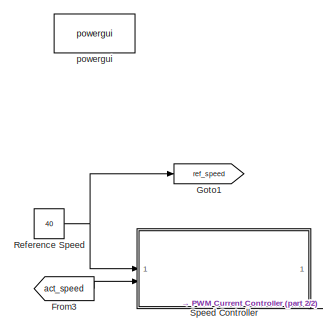
[diagram: root canvas - part 1/2, top left region]
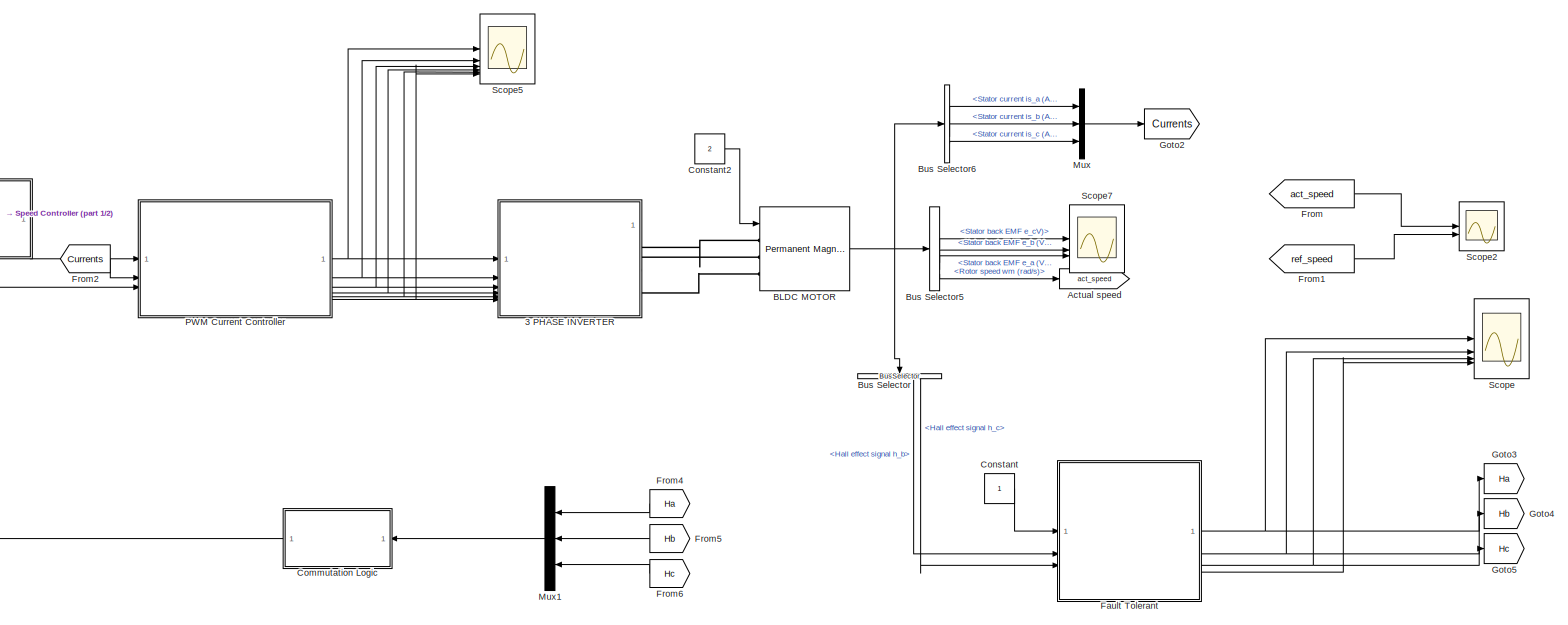
[diagram: root canvas - part 2/2, most of the canvas]
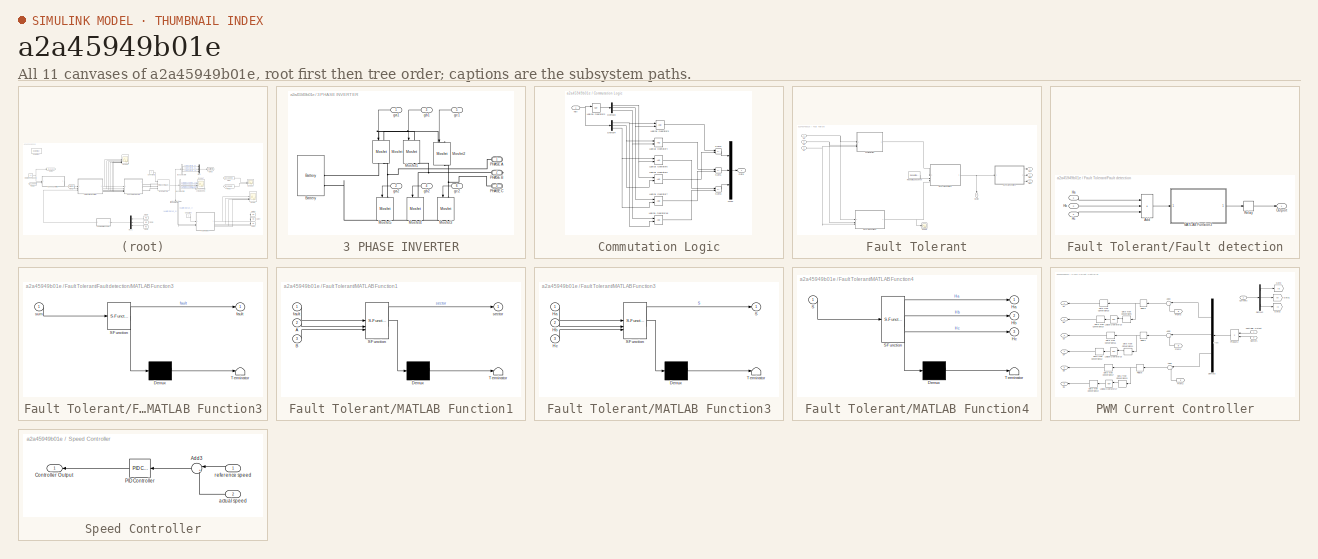
[diagram: thumbnail index - all 11 canvases of the model, root first then tree order]
MODEL slx_a2a45949b01e
KIND model
CONFIG AbsTol = auto
CONFIG EnableMultiTasking = off
CONFIG FixedStep = auto
CONFIG MaxStep = auto
CONFIG MinStep = auto
CONFIG RelTol = auto
CONFIG SampleTimeConstraint = Unconstrained
CONFIG SolverName = VariableStepAuto
CONFIG StartTime = 0.0
CONFIG StopTime = 2
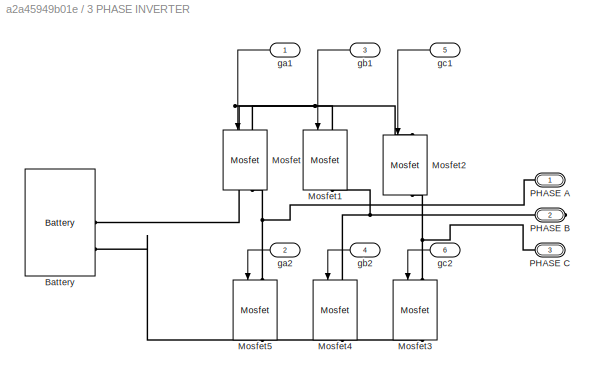
BLOCK [SubSystem] 3 PHASE INVERTER
BLOCK [Reference] 3 PHASE INVERTER/Battery  REF=spsBatteryLib/Battery
  SourceBlock = spsBatteryLib/Battery
  SourceType = Battery
BLOCK [Reference] 3 PHASE INVERTER/Mosfet  REF=spsMosfetLib/Mosfet
  NameLocation = left
  SourceBlock = spsMosfetLib/Mosfet
  SourceType = Mosfet
BLOCK [Reference] 3 PHASE INVERTER/Mosfet1  REF=spsMosfetLib/Mosfet
  NameLocation = left
  SourceBlock = spsMosfetLib/Mosfet
  SourceType = Mosfet
BLOCK [Reference] 3 PHASE INVERTER/Mosfet2  REF=spsMosfetLib/Mosfet
  NameLocation = left
  SourceBlock = spsMosfetLib/Mosfet
  SourceType = Mosfet
BLOCK [Reference] 3 PHASE INVERTER/Mosfet3  REF=spsMosfetLib/Mosfet
  NameLocation = left
  SourceBlock = spsMosfetLib/Mosfet
  SourceType = Mosfet
BLOCK [Reference] 3 PHASE INVERTER/Mosfet4  REF=spsMosfetLib/Mosfet
  NameLocation = left
  SourceBlock = spsMosfetLib/Mosfet
  SourceType = Mosfet
BLOCK [Reference] 3 PHASE INVERTER/Mosfet5  REF=spsMosfetLib/Mosfet
  NameLocation = left
  SourceBlock = spsMosfetLib/Mosfet
  SourceType = Mosfet
BLOCK [PMIOPort] 3 PHASE INVERTER/PHASE A
  Side = Right
BLOCK [PMIOPort] 3 PHASE INVERTER/PHASE B
  Port = 2
  Side = Right
BLOCK [PMIOPort] 3 PHASE INVERTER/PHASE C
  Port = 3
  Side = Right
BLOCK [Inport] 3 PHASE INVERTER/ga1
  NameLocation = top
BLOCK [Inport] 3 PHASE INVERTER/ga2
  NameLocation = top
  Port = 2
BLOCK [Inport] 3 PHASE INVERTER/gb1
  NameLocation = top
  Port = 3
BLOCK [Inport] 3 PHASE INVERTER/gb2
  NameLocation = top
  Port = 4
BLOCK [Inport] 3 PHASE INVERTER/gc1
  NameLocation = top
  Port = 5
BLOCK [Inport] 3 PHASE INVERTER/gc2
  NameLocation = top
  Port = 6
BLOCK [Goto] Actual speed
  GotoTag = act_speed
BLOCK [Reference] BLDC MOTOR  REF=spsPermanentMagnetSynchronousMachineLib/Permanent Magnet
Synchronous Machine
  SourceBlock = spsPermanentMagnetSynchronousMachineLib/Permanent Magnet\nSynchronous Machine
  SourceType = Permanent Magnet Synchronous Machine
BLOCK [BusSelector] Bus Selector
  NameLocation = left
  OutputSignals = Hall effect signal h_a,Hall effect signal h_b,Hall effect signal h_c
BLOCK [BusSelector] Bus Selector5
  OutputSignals = Stator back EMF e_cV),Stator back EMF e_b (V),Stator back EMF e_a (V),Rotor speed wm (rad/s)
BLOCK [BusSelector] Bus Selector6
  OutputSignals = Stator current is_a (A),Stator current is_b (A),Stator current is_c (A)
BLOCK [SubSystem] Commutation Logic
BLOCK [Demux] Commutation Logic/Demux3
  Outputs = 3
BLOCK [Demux] Commutation Logic/Demux4
  Outputs = 3
BLOCK [Outport] Commutation Logic/Gate
  VectorParamsAs1DForOutWhenUnconnected = off
BLOCK [Logic] Commutation Logic/Logical Operator18
  AllPortsSameDT = off
  OutDataTypeStr = boolean
BLOCK [Logic] Commutation Logic/Logical Operator2
  AllPortsSameDT = off
  Operator = NOT
  OutDataTypeStr = boolean
BLOCK [Logic] Commutation Logic/Logical Operator3
  AllPortsSameDT = off
  OutDataTypeStr = boolean
BLOCK [Logic] Commutation Logic/Logical Operator4
  AllPortsSameDT = off
  OutDataTypeStr = boolean
BLOCK [Logic] Commutation Logic/Logical Operator5
  AllPortsSameDT = off
  OutDataTypeStr = boolean
BLOCK [Logic] Commutation Logic/Logical Operator6
  AllPortsSameDT = off
  OutDataTypeStr = boolean
BLOCK [Logic] Commutation Logic/Logical Operator7
  AllPortsSameDT = off
  OutDataTypeStr = boolean
BLOCK [Mux] Commutation Logic/Mux2
  DisplayOption = bar
  Inputs = 3
BLOCK [Sum] Commutation Logic/Sum1
  IconShape = rectangular
  Inputs = +-
  OutDataTypeStr = double
BLOCK [Sum] Commutation Logic/Sum2
  IconShape = rectangular
  Inputs = +-
  OutDataTypeStr = double
BLOCK [Sum] Commutation Logic/Sum3
  IconShape = rectangular
  Inputs = +-
  OutDataTypeStr = double
BLOCK [Inport] Commutation Logic/hall 
BLOCK [Constant] Constant
BLOCK [Constant] Constant2
  Value = 2
BLOCK [SubSystem] Fault Tolerant
BLOCK [SubSystem] Fault Tolerant/Fault detection
BLOCK [Sum] Fault Tolerant/Fault detection/Add
  IconShape = rectangular
  Inputs = +++
BLOCK [Inport] Fault Tolerant/Fault detection/Ha
BLOCK [Inport] Fault Tolerant/Fault detection/Hb
  Port = 2
BLOCK [Inport] Fault Tolerant/Fault detection/Hc
  Port = 3
BLOCK [SubSystem] Fault Tolerant/Fault detection/MATLAB Function3
  ErrorFcn = Stateflow.Translate.translate
  PermitHierarchicalResolution = ExplicitOnly
  SFBlockType = MATLAB Function
  TreatAsAtomicUnit = on
BLOCK [Demux] Fault Tolerant/Fault detection/MATLAB Function3/ Demux 
  Outputs = 1
BLOCK [S-Function] Fault Tolerant/Fault detection/MATLAB Function3/ SFunction 
  EnableBusSupport = on
  FunctionName = sf_sfun
  PortCounts = [1 2]
  SFcnIsStateOwnerBlock = off
  SFunctionDeploymentMode = off
  Tag = Stateflow S-Function 3
BLOCK [Terminator] Fault Tolerant/Fault detection/MATLAB Function3/ Terminator 
BLOCK [Outport] Fault Tolerant/Fault detection/MATLAB Function3/fault
BLOCK [Inport] Fault Tolerant/Fault detection/MATLAB Function3/sum
BLOCK [Outport] Fault Tolerant/Fault detection/Outport
BLOCK [Relay] Fault Tolerant/Fault detection/Relay
  OffSwitchValue = -1
  OnSwitchValue = 1
BLOCK [Inport] Fault Tolerant/Ha
BLOCK [Outport] Fault Tolerant/Ha2
BLOCK [Inport] Fault Tolerant/Hb
  Port = 2
BLOCK [Outport] Fault Tolerant/Hb2
  Port = 2
BLOCK [Inport] Fault Tolerant/Hc
  Port = 3
BLOCK [Outport] Fault Tolerant/Hc2
  Port = 3
BLOCK [SubSystem] Fault Tolerant/MATLAB Function1
  ErrorFcn = Stateflow.Translate.translate
  PermitHierarchicalResolution = ExplicitOnly
  SFBlockType = MATLAB Function
  TreatAsAtomicUnit = on
BLOCK [Demux] Fault Tolerant/MATLAB Function1/ Demux 
  Outputs = 1
BLOCK [S-Function] Fault Tolerant/MATLAB Function1/ SFunction 
  EnableBusSupport = on
  FunctionName = sf_sfun
  PortCounts = [3 2]
  SFcnIsStateOwnerBlock = off
  SFunctionDeploymentMode = off
  Tag = Stateflow S-Function 1
BLOCK [Terminator] Fault Tolerant/MATLAB Function1/ Terminator 
BLOCK [Inport] Fault Tolerant/MATLAB Function1/A
  Port = 2
BLOCK [Inport] Fault Tolerant/MATLAB Function1/B
  Port = 3
BLOCK [Inport] Fault Tolerant/MATLAB Function1/fault
BLOCK [Outport] Fault Tolerant/MATLAB Function1/sector
BLOCK [SubSystem] Fault Tolerant/MATLAB Function3
  ErrorFcn = Stateflow.Translate.translate
  PermitHierarchicalResolution = ExplicitOnly
  SFBlockType = MATLAB Function
  TreatAsAtomicUnit = on
BLOCK [Demux] Fault Tolerant/MATLAB Function3/ Demux 
  Outputs = 1
BLOCK [S-Function] Fault Tolerant/MATLAB Function3/ SFunction 
  EnableBusSupport = on
  FunctionName = sf_sfun
  PortCounts = [3 2]
  SFcnIsStateOwnerBlock = off
  SFunctionDeploymentMode = off
  Tag = Stateflow S-Function 2
BLOCK [Terminator] Fault Tolerant/MATLAB Function3/ Terminator 
BLOCK [Inport] Fault Tolerant/MATLAB Function3/Ha
BLOCK [Inport] Fault Tolerant/MATLAB Function3/Hb
  Port = 2
BLOCK [Inport] Fault Tolerant/MATLAB Function3/Hc
  Port = 3
BLOCK [Outport] Fault Tolerant/MATLAB Function3/S
BLOCK [SubSystem] Fault Tolerant/MATLAB Function4
  ErrorFcn = Stateflow.Translate.translate
  PermitHierarchicalResolution = ExplicitOnly
  SFBlockType = MATLAB Function
  TreatAsAtomicUnit = on
BLOCK [Demux] Fault Tolerant/MATLAB Function4/ Demux 
  Outputs = 1
BLOCK [S-Function] Fault Tolerant/MATLAB Function4/ SFunction 
  EnableBusSupport = on
  FunctionName = sf_sfun
  PortCounts = [1 4]
  SFcnIsStateOwnerBlock = off
  SFunctionDeploymentMode = off
  Tag = Stateflow S-Function 4
BLOCK [Terminator] Fault Tolerant/MATLAB Function4/ Terminator 
BLOCK [Outport] Fault Tolerant/MATLAB Function4/Ha
BLOCK [Outport] Fault Tolerant/MATLAB Function4/Hb
  Port = 2
BLOCK [Outport] Fault Tolerant/MATLAB Function4/Hc
  Port = 3
BLOCK [Inport] Fault Tolerant/MATLAB Function4/S
BLOCK [Reference] Fault Tolerant/Repeating Sequence  REF=simulink/Sources/Repeating
Sequence
  SourceBlock = simulink/Sources/Repeating\nSequence
  SourceType = Repeating table
BLOCK [Scope] Fault Tolerant/Scope
  Floating = off
  NumInputPorts = 1
  ScopeSpecificationString = Simulink.scopes.TimeScopeBlockCfg('CurrentConfiguration', extmgr.ConfigurationSet(extmgr.Configuration('Core','General UI',true),extmgr.Configuration('Core','Source UI',true),extmgr.Configuration('Sources','WiredSimulink',true,'DataLoggingVariableName','ScopeData1'),extmgr.Configuration('Visuals','Time Domain',true,'SerializedDisplays',{struct('MinYLimReal','0.375','MaxYLimReal','6.625','YLabelRea...<+1730ch>
BLOCK [Outport] Fault Tolerant/Sector
  NameLocation = left
  Port = 4
BLOCK [From] From
  GotoTag = act_speed
BLOCK [From] From1
  GotoTag = ref_speed
  TagVisibility = global
BLOCK [From] From2
  GotoTag = Currents
BLOCK [From] From3
  GotoTag = act_speed
BLOCK [From] From4
  GotoTag = Ha
  NameLocation = top
BLOCK [From] From5
  GotoTag = Hb
  NameLocation = top
BLOCK [From] From6
  GotoTag = Hc
  NameLocation = top
BLOCK [Goto] Goto1
  GotoTag = ref_speed
  TagVisibility = global
BLOCK [Goto] Goto2
  GotoTag = Currents
BLOCK [Goto] Goto3
  GotoTag = Ha
BLOCK [Goto] Goto4
  GotoTag = Hb
BLOCK [Goto] Goto5
  GotoTag = Hc
BLOCK [Mux] Mux
  DisplayOption = bar
  Inputs = 3
BLOCK [Mux] Mux1
  DisplayOption = bar
  Inputs = 3
  NameLocation = top
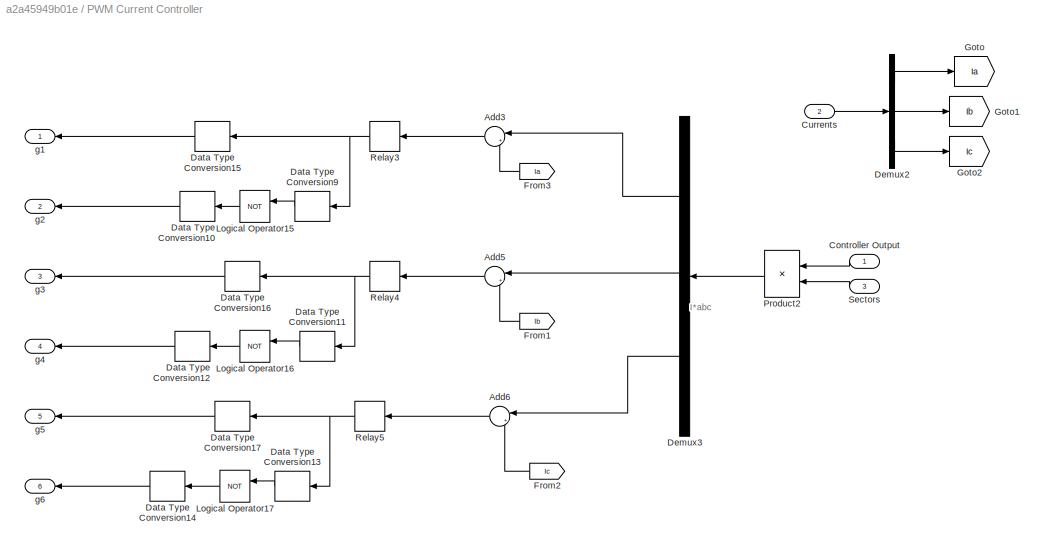
BLOCK [SubSystem] PWM Current Controller
  NameLocation = top
BLOCK [Sum] PWM Current Controller/Add3
  Inputs = |+-
  NameLocation = top
BLOCK [Sum] PWM Current Controller/Add5
  Inputs = |+-
  NameLocation = top
BLOCK [Sum] PWM Current Controller/Add6
  Inputs = |+-
  NameLocation = top
BLOCK [Inport] PWM Current Controller/Controller Output 
BLOCK [Inport] PWM Current Controller/Currents
  Port = 2
BLOCK [DataTypeConversion] PWM Current Controller/Data Type Conversion10
  NameLocation = top
BLOCK [DataTypeConversion] PWM Current Controller/Data Type Conversion11
  NameLocation = top
BLOCK [DataTypeConversion] PWM Current Controller/Data Type Conversion12
  NameLocation = top
BLOCK [DataTypeConversion] PWM Current Controller/Data Type Conversion13
  NameLocation = top
BLOCK [DataTypeConversion] PWM Current Controller/Data Type Conversion14
  NameLocation = top
BLOCK [DataTypeConversion] PWM Current Controller/Data Type Conversion15
  NameLocation = top
BLOCK [DataTypeConversion] PWM Current Controller/Data Type Conversion16
  NameLocation = top
BLOCK [DataTypeConversion] PWM Current Controller/Data Type Conversion17
  NameLocation = top
BLOCK [DataTypeConversion] PWM Current Controller/Data Type Conversion9
  NameLocation = top
BLOCK [Demux] PWM Current Controller/Demux2
  Outputs = 3
BLOCK [Demux] PWM Current Controller/Demux3
  DisplayOption = none
  NameLocation = top
  Outputs = 3
BLOCK [From] PWM Current Controller/From1
  GotoTag = Ib
BLOCK [From] PWM Current Controller/From2
  GotoTag = Ic
BLOCK [From] PWM Current Controller/From3
  GotoTag = Ia
BLOCK [Goto] PWM Current Controller/Goto
  GotoTag = Ia
BLOCK [Goto] PWM Current Controller/Goto1
  GotoTag = Ib
BLOCK [Goto] PWM Current Controller/Goto2
  GotoTag = Ic
BLOCK [Logic] PWM Current Controller/Logical Operator15
  AllPortsSameDT = off
  NameLocation = top
  Operator = NOT
  OutDataTypeStr = boolean
BLOCK [Logic] PWM Current Controller/Logical Operator16
  AllPortsSameDT = off
  NameLocation = top
  Operator = NOT
  OutDataTypeStr = boolean
BLOCK [Logic] PWM Current Controller/Logical Operator17
  AllPortsSameDT = off
  NameLocation = top
  Operator = NOT
  OutDataTypeStr = boolean
BLOCK [Product] PWM Current Controller/Product2
  NameLocation = top
  OutDataTypeStr = Inherit: Same as first input
  SaturateOnIntegerOverflow = on
BLOCK [Relay] PWM Current Controller/Relay3
  NameLocation = top
  OffSwitchValue = -0.1
  OnSwitchValue = 0.1
BLOCK [Relay] PWM Current Controller/Relay4
  NameLocation = top
  OffSwitchValue = -0.1
  OnSwitchValue = 0.1
BLOCK [Relay] PWM Current Controller/Relay5
  NameLocation = top
  OffSwitchValue = -0.1
  OnSwitchValue = 0.1
BLOCK [Inport] PWM Current Controller/Sectors
  Port = 3
BLOCK [Outport] PWM Current Controller/g1
  VectorParamsAs1DForOutWhenUnconnected = off
BLOCK [Outport] PWM Current Controller/g2
  Port = 2
  VectorParamsAs1DForOutWhenUnconnected = off
BLOCK [Outport] PWM Current Controller/g3
  Port = 3
  VectorParamsAs1DForOutWhenUnconnected = off
BLOCK [Outport] PWM Current Controller/g4
  Port = 4
  VectorParamsAs1DForOutWhenUnconnected = off
BLOCK [Outport] PWM Current Controller/g5
  Port = 5
  VectorParamsAs1DForOutWhenUnconnected = off
BLOCK [Outport] PWM Current Controller/g6
  Port = 6
  VectorParamsAs1DForOutWhenUnconnected = off
BLOCK [Constant] Reference Speed
  Value = 40
BLOCK [Scope] Scope
  Floating = off
  NumInputPorts = 4
  ScopeSpecificationString = Simulink.scopes.TimeScopeBlockCfg('CurrentConfiguration', extmgr.ConfigurationSet(extmgr.Configuration('Core','General UI',true),extmgr.Configuration('Core','Source UI',true),extmgr.Configuration('Sources','WiredSimulink',true,'DataLoggingVariableName','ScopeData1'),extmgr.Configuration('Visuals','Time Domain',true,'SerializedDisplays',{struct('MinYLimReal','-0.125','MaxYLimReal','1.125','YLabelRe...<+3860ch>
BLOCK [Scope] Scope2
  Floating = off
  NumInputPorts = 2
  ScopeSpecificationString = Simulink.scopes.TimeScopeBlockCfg('CurrentConfiguration', extmgr.ConfigurationSet(extmgr.Configuration('Core','General UI',true),extmgr.Configuration('Core','Source UI',true),extmgr.Configuration('Sources','WiredSimulink',true,'DataLoggingVariableName','ScopeData2'),extmgr.Configuration('Visuals','Time Domain',true,'SerializedDisplays',{struct('MinYLimReal','-63.56308','MaxYLimReal','52.66262','YL...<+2069ch>
BLOCK [Scope] Scope5
  Floating = off
  NumInputPorts = 6
  ScopeSpecificationString = Simulink.scopes.TimeScopeBlockCfg('CurrentConfiguration', extmgr.ConfigurationSet(extmgr.Configuration('Core','General UI',true),extmgr.Configuration('Core','Source UI',true),extmgr.Configuration('Sources','WiredSimulink',true,'DataLoggingVariableName','ScopeData6'),extmgr.Configuration('Visuals','Time Domain',true,'SerializedDisplays',{struct('MinYLimReal','-0.125','MaxYLimReal','1.125','YLabelRe...<+6992ch>
BLOCK [Scope] Scope7
  Floating = off
  NumInputPorts = 3
  ScopeSpecificationString = Simulink.scopes.TimeScopeBlockCfg('CurrentConfiguration', extmgr.ConfigurationSet(extmgr.Configuration('Core','General UI',true),extmgr.Configuration('Core','Source UI',true),extmgr.Configuration('Sources','WiredSimulink',true),extmgr.Configuration('Visuals','Time Domain',true,'SerializedDisplays',{struct('MinYLimReal','-17.81484','MaxYLimReal','17.8134','YLabelReal','','MinYLimMag','0.00000','Max...<+3116ch>
BLOCK [SubSystem] Speed Controller
  NameLocation = top
BLOCK [Sum] Speed Controller/Add3
  Inputs = |+-
  NameLocation = top
BLOCK [Outport] Speed Controller/Controller Output 
  VectorParamsAs1DForOutWhenUnconnected = off
BLOCK [Reference] Speed Controller/PID Controller  REF=slpidlib/PID Controller
  NameLocation = top
  SourceBlock = slpidlib/PID Controller
  SourceType = PID 1dof
BLOCK [Inport] Speed Controller/actual speed
  Port = 2
BLOCK [Inport] Speed Controller/reference speed
BLOCK [Reference] powergui  REF=spspowerguiLib/powergui
  Priority = 1
  SourceBlock = spspowerguiLib/powergui
  SourceType = PSB option menu block
ANNOTATION PWM Current Controller: I*abc
LINE 3 PHASE INVERTER/ga1:1 -> 3 PHASE INVERTER/Mosfet:1
LINE 3 PHASE INVERTER/ga2:1 -> 3 PHASE INVERTER/Mosfet5:1
LINE 3 PHASE INVERTER/gb1:1 -> 3 PHASE INVERTER/Mosfet1:1
LINE 3 PHASE INVERTER/gb2:1 -> 3 PHASE INVERTER/Mosfet4:1
LINE 3 PHASE INVERTER/gc1:1 -> 3 PHASE INVERTER/Mosfet2:1
LINE 3 PHASE INVERTER/gc2:1 -> 3 PHASE INVERTER/Mosfet3:1
NET BLDC MOTOR:1 -> Bus Selector5:1, Bus Selector6:1, Bus Selector:1
LINE Bus Selector5:1 -> Scope7:1
LINE Bus Selector5:2 -> Scope7:2
LINE Bus Selector5:3 -> Scope7:3
LINE Bus Selector5:4 -> Actual speed:1
LINE Bus Selector6:1 -> Mux:1
LINE Bus Selector6:2 -> Mux:2
LINE Bus Selector6:3 -> Mux:3
LINE Bus Selector:2 -> Fault Tolerant:2
LINE Bus Selector:3 -> Fault Tolerant:3
NET Commutation Logic/Demux3:1 -> Commutation Logic/Logical Operator5:2, Commutation Logic/Logical Operator6:1
NET Commutation Logic/Demux3:2 -> Commutation Logic/Logical Operator3:2, Commutation Logic/Logical Operator7:1
NET Commutation Logic/Demux3:3 -> Commutation Logic/Logical Operator18:1, Commutation Logic/Logical Operator4:2
NET Commutation Logic/Demux4:1 -> Commutation Logic/Logical Operator18:2, Commutation Logic/Logical Operator3:1
NET Commutation Logic/Demux4:2 -> Commutation Logic/Logical Operator4:1, Commutation Logic/Logical Operator6:2
NET Commutation Logic/Demux4:3 -> Commutation Logic/Logical Operator5:1, Commutation Logic/Logical Operator7:2
LINE Commutation Logic/Logical Operator18:1 -> Commutation Logic/Sum3:2
LINE Commutation Logic/Logical Operator2:1 -> Commutation Logic/Demux3:1
LINE Commutation Logic/Logical Operator3:1 -> Commutation Logic/Sum2:1
LINE Commutation Logic/Logical Operator4:1 -> Commutation Logic/Sum1:1
LINE Commutation Logic/Logical Operator5:1 -> Commutation Logic/Sum3:1
LINE Commutation Logic/Logical Operator6:1 -> Commutation Logic/Sum2:2
LINE Commutation Logic/Logical Operator7:1 -> Commutation Logic/Sum1:2
LINE Commutation Logic/Mux2:1 -> Commutation Logic/Gate:1
LINE Commutation Logic/Sum1:1 -> Commutation Logic/Mux2:2
LINE Commutation Logic/Sum2:1 -> Commutation Logic/Mux2:1
LINE Commutation Logic/Sum3:1 -> Commutation Logic/Mux2:3
NET Commutation Logic/hall :1 -> Commutation Logic/Demux4:1, Commutation Logic/Logical Operator2:1
LINE Commutation Logic:1 -> PWM Current Controller:3
LINE Constant2:1 -> BLDC MOTOR:1
LINE Constant:1 -> Fault Tolerant:1
LINE Fault Tolerant/Fault detection/Add:1 -> Fault Tolerant/Fault detection/MATLAB Function3:1
LINE Fault Tolerant/Fault detection/Ha:1 -> Fault Tolerant/Fault detection/Add:1
LINE Fault Tolerant/Fault detection/Hb:1 -> Fault Tolerant/Fault detection/Add:2
LINE Fault Tolerant/Fault detection/Hc:1 -> Fault Tolerant/Fault detection/Add:3
LINE Fault Tolerant/Fault detection/MATLAB Function3:1 -> Fault Tolerant/Fault detection/Relay:1
LINE Fault Tolerant/Fault detection/Relay:1 -> Fault Tolerant/Fault detection/Outport:1
LINE Fault Tolerant/Fault detection:1 -> Fault Tolerant/MATLAB Function1:1
NET Fault Tolerant/Ha:1 -> Fault Tolerant/Fault detection:1, Fault Tolerant/MATLAB Function3:1
NET Fault Tolerant/Hb:1 -> Fault Tolerant/Fault detection:2, Fault Tolerant/MATLAB Function3:2
NET Fault Tolerant/Hc:1 -> Fault Tolerant/Fault detection:3, Fault Tolerant/MATLAB Function3:3
NET Fault Tolerant/MATLAB Function1:1 -> Fault Tolerant/MATLAB Function4:1, Fault Tolerant/Sector:1
NET Fault Tolerant/MATLAB Function3:1 -> Fault Tolerant/MATLAB Function1:3, Fault Tolerant/Scope:1
LINE Fault Tolerant/MATLAB Function4:1 -> Fault Tolerant/Ha2:1
LINE Fault Tolerant/MATLAB Function4:2 -> Fault Tolerant/Hb2:1
LINE Fault Tolerant/MATLAB Function4:3 -> Fault Tolerant/Hc2:1
LINE Fault Tolerant/Repeating Sequence:1 -> Fault Tolerant/MATLAB Function1:2
NET Fault Tolerant:1 -> Goto3:1, Scope:1
NET Fault Tolerant:2 -> Goto4:1, Scope:2
NET Fault Tolerant:3 -> Goto5:1, Scope:3
LINE Fault Tolerant:4 -> Scope:4
LINE From1:1 -> Scope2:2
LINE From2:1 -> PWM Current Controller:2
LINE From3:1 -> Speed Controller:2
LINE From4:1 -> Mux1:1
LINE From5:1 -> Mux1:2
LINE From6:1 -> Mux1:3
LINE From:1 -> Scope2:1
LINE Mux1:1 -> Commutation Logic:1
LINE Mux:1 -> Goto2:1
LINE PWM Current Controller/Add3:1 -> PWM Current Controller/Relay3:1
LINE PWM Current Controller/Add5:1 -> PWM Current Controller/Relay4:1
LINE PWM Current Controller/Add6:1 -> PWM Current Controller/Relay5:1
LINE PWM Current Controller/Controller Output :1 -> PWM Current Controller/Product2:1
LINE PWM Current Controller/Currents:1 -> PWM Current Controller/Demux2:1
LINE PWM Current Controller/Data Type Conversion10:1 -> PWM Current Controller/g2:1
LINE PWM Current Controller/Data Type Conversion11:1 -> PWM Current Controller/Logical Operator16:1
LINE PWM Current Controller/Data Type Conversion12:1 -> PWM Current Controller/g4:1
LINE PWM Current Controller/Data Type Conversion13:1 -> PWM Current Controller/Logical Operator17:1
LINE PWM Current Controller/Data Type Conversion14:1 -> PWM Current Controller/g6:1
LINE PWM Current Controller/Data Type Conversion15:1 -> PWM Current Controller/g1:1
LINE PWM Current Controller/Data Type Conversion16:1 -> PWM Current Controller/g3:1
LINE PWM Current Controller/Data Type Conversion17:1 -> PWM Current Controller/g5:1
LINE PWM Current Controller/Data Type Conversion9:1 -> PWM Current Controller/Logical Operator15:1
LINE PWM Current Controller/Demux2:1 -> PWM Current Controller/Goto:1
LINE PWM Current Controller/Demux2:2 -> PWM Current Controller/Goto1:1
LINE PWM Current Controller/Demux2:3 -> PWM Current Controller/Goto2:1
LINE PWM Current Controller/Demux3:1 -> PWM Current Controller/Add3:1
LINE PWM Current Controller/Demux3:2 -> PWM Current Controller/Add5:1
LINE PWM Current Controller/Demux3:3 -> PWM Current Controller/Add6:1
LINE PWM Current Controller/From1:1 -> PWM Current Controller/Add5:2
LINE PWM Current Controller/From2:1 -> PWM Current Controller/Add6:2
LINE PWM Current Controller/From3:1 -> PWM Current Controller/Add3:2
LINE PWM Current Controller/Logical Operator15:1 -> PWM Current Controller/Data Type Conversion10:1
LINE PWM Current Controller/Logical Operator16:1 -> PWM Current Controller/Data Type Conversion12:1
LINE PWM Current Controller/Logical Operator17:1 -> PWM Current Controller/Data Type Conversion14:1
LINE PWM Current Controller/Product2:1 -> PWM Current Controller/Demux3:1
NET PWM Current Controller/Relay3:1 -> PWM Current Controller/Data Type Conversion15:1, PWM Current Controller/Data Type Conversion9:1
NET PWM Current Controller/Relay4:1 -> PWM Current Controller/Data Type Conversion11:1, PWM Current Controller/Data Type Conversion16:1
NET PWM Current Controller/Relay5:1 -> PWM Current Controller/Data Type Conversion13:1, PWM Current Controller/Data Type Conversion17:1
LINE PWM Current Controller/Sectors:1 -> PWM Current Controller/Product2:2
NET PWM Current Controller:1 -> 3 PHASE INVERTER:1, Scope5:1
NET PWM Current Controller:2 -> 3 PHASE INVERTER:2, Scope5:2
NET PWM Current Controller:3 -> 3 PHASE INVERTER:3, Scope5:3
NET PWM Current Controller:4 -> 3 PHASE INVERTER:4, Scope5:4
NET PWM Current Controller:5 -> 3 PHASE INVERTER:5, Scope5:5
NET PWM Current Controller:6 -> 3 PHASE INVERTER:6, Scope5:6
NET Reference Speed:1 -> Goto1:1, Speed Controller:1
LINE Speed Controller/Add3:1 -> Speed Controller/PID Controller:1
LINE Speed Controller/PID Controller:1 -> Speed Controller/Controller Output :1
LINE Speed Controller/actual speed:1 -> Speed Controller/Add3:2
LINE Speed Controller/reference speed:1 -> Speed Controller/Add3:1
LINE Speed Controller:1 -> PWM Current Controller:1
PNET net1: 3 PHASE INVERTER/Battery:LConn1 -- 3 PHASE INVERTER/Mosfet1:LConn1 -- 3 PHASE INVERTER/Mosfet2:LConn1 -- 3 PHASE INVERTER/Mosfet:LConn1
PNET net2: 3 PHASE INVERTER/Battery:LConn2 -- 3 PHASE INVERTER/Mosfet3:RConn1 -- 3 PHASE INVERTER/Mosfet4:RConn1 -- 3 PHASE INVERTER/Mosfet5:RConn1
PNET net3: 3 PHASE INVERTER/Mosfet1:RConn1 -- 3 PHASE INVERTER/Mosfet4:LConn1 -- 3 PHASE INVERTER/PHASE B:RConn1
PNET net4: 3 PHASE INVERTER/Mosfet2:RConn1 -- 3 PHASE INVERTER/Mosfet3:LConn1 -- 3 PHASE INVERTER/PHASE C:RConn1
PNET net5: 3 PHASE INVERTER/Mosfet5:LConn1 -- 3 PHASE INVERTER/Mosfet:RConn1 -- 3 PHASE INVERTER/PHASE A:RConn1
PLINE 3 PHASE INVERTER:RConn1 -- BLDC MOTOR:LConn1
PLINE 3 PHASE INVERTER:RConn2 -- BLDC MOTOR:LConn2
PLINE 3 PHASE INVERTER:RConn3 -- BLDC MOTOR:LConn3
note: NET lines group one-source signal fan-out (src -> all destinations, sorted); 1:1 wires keep LINE; PNET lines group multi-terminal physical nets as a canonical sorted terminal list (undirected conserving connections); 2-terminal nets keep the pairwise PLINE form
CHART Fault Tolerant/MATLAB Function1 states=1 transitions=1
  STATE_LABEL 'eML_blk_kernel()'
  STATE_LABEL 'SCRIPT:\nfunction sector= final(fault,A,B)\n\nif fault ==1\n    sector=A;\n\nelse \n    sector = B;\n\nend\n\n'
CHART Fault Tolerant/MATLAB Function3 states=1 transitions=1
  STATE_LABEL 'eML_blk_kernel()'
  STATE_LABEL 'SCRIPT:\nfunction S = get_motor_state(Ha,Hb,Hc)\nS=0;\nif (Ha==0)&&(Hb==0)&&(Hc==0)\n    S=0;\nend\nif (Ha==1)&&(Hb==1)&&(Hc==0)\n    S=1;\nend\nif (Ha==0)&&(Hb==1)&&(Hc==0)\n     S=2;\nend\nif (Ha==0)&&(Hb==1)&&(Hc==1)\n    S=3;\nend\nif (Ha==0)&&(Hb==0)&&(Hc==1)\n     S=4;\nend\nif (Ha==1)&&(Hb==0)&&(Hc==1)\n     S=5;\nend\nif (Ha==1)&&(Hb==0)&&(Hc==0)\n     S=6;\nend\nif (Ha==1)&&(Hb==1)&&(Hc==1)\n     S=7;\nend\nend\n\n'
CHART Fault Tolerant/Fault detection/MATLAB Function3 states=1 transitions=1
  STATE_LABEL 'eML_blk_kernel()'
  STATE_LABEL 'SCRIPT:\nfunction fault = fault_det(sum)\nif sum==0 || sum==3\n   fault=1;\nelse \n    fault=0;\nend\nend\n\n'
CHART Fault Tolerant/MATLAB Function4 states=1 transitions=1
  STATE_LABEL 'eML_blk_kernel()'
  STATE_LABEL 'SCRIPT:\nfunction [Ha,Hb,Hc] = hall(S)\nHa=0;\nHb=0;\nHc=0;\nif S==0\n    Ha=0; Hb=0; Hc=0;\n    \nend\nif S==1\n    Ha=1; Hb=1; Hc=0;\n    \nend\nif S==2\n    Ha=0; Hb=1; Hc=0;\n    \nend\nif S==3\n    Ha=0; Hb=1; Hc=1;\n    \nend\nif S==4\n    Ha=0; Hb=0; Hc=1;\n    \nend\nif S==5\n    Ha=1; Hb=0; Hc=1;\n    \nend\nif S==6\n    Ha=1; Hb=0; Hc=0;\n    \nend\nif S==7\n    Ha=1; Hb=1; Hc=1;\n    \nend\nend\n\n'
CHART  states=0 transitions=0
CHART  states=0 transitions=0
CHART  states=0 transitions=0
CHART  states=0 transitions=0
